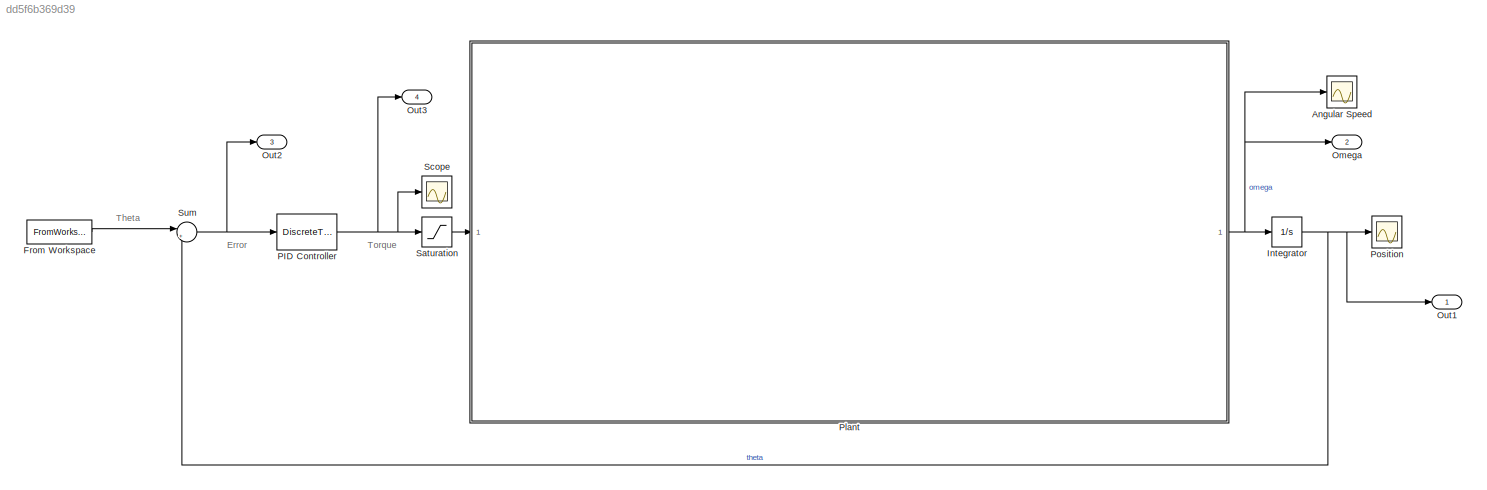
MODEL slx_dd5f6b369d39
KIND model
CONFIG AbsTol = auto
CONFIG EnableMultiTasking = off
CONFIG FixedStep = auto
CONFIG MaxStep = auto
CONFIG MinStep = auto
CONFIG RelTol = 1e-3
CONFIG SampleTimeConstraint = Unconstrained
CONFIG SolverName = VariableStepAuto
CONFIG StartTime = 0.0
CONFIG StopTime = 10
BLOCK [Scope] Angular Speed
  Floating = off
  NumInputPorts = 1
  Ports = [1]
  ScopeSpecificationString = Simulink.scopes.TimeScopeBlockCfg('CurrentConfiguration', extmgr.ConfigurationSet(extmgr.Configuration('Core','General UI',true),extmgr.Configuration('Core','Source UI',true),extmgr.Configuration('Sources','WiredSimulink',true,'DataLoggingVariableName','ScopeData1'),extmgr.Configuration('Visuals','Time Domain',true,'SerializedDisplays',{struct('MinYLimReal','-16.66629','MaxYLimReal','85.93646','YL...<+1449ch>
BLOCK [FromWorkspace] From Workspace
  VariableName = sim_source_off
BLOCK [Integrator] Integrator
  Ports = [1, 1]
BLOCK [Outport] Omega
  Port = 2
  SignalName = omega
BLOCK [Outport] Out1
  SignalName = theta
BLOCK [Outport] Out2
  Port = 3
  SignalName = error
BLOCK [Outport] Out3
  Port = 4
  SignalName = PID Torque
BLOCK [DiscreteTransferFcn] PID Controller
  Denominator = a_pid
  InputPortMap = u0
  Numerator = b_pid
  Ports = [1, 1]
  SampleTime = T
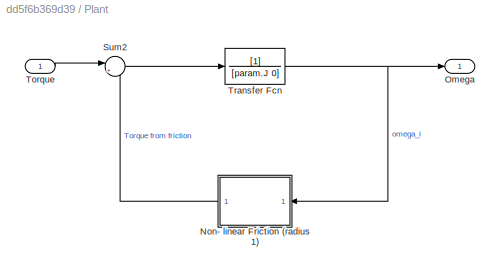
BLOCK [SubSystem] Plant
  Ports = [1, 1]
  RequestExecContextInheritance = off
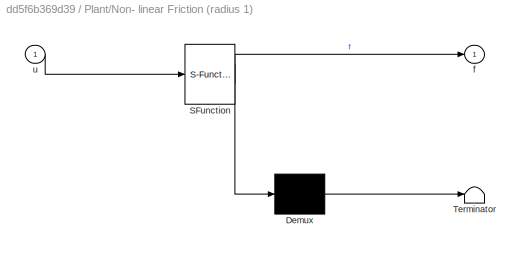
BLOCK [SubSystem] Plant/Non- linear Friction (radius 1)
  ErrorFcn = Stateflow.Translate.translate
  PermitHierarchicalResolution = ExplicitOnly
  Ports = [1, 1]
  RequestExecContextInheritance = off
  SFBlockType = MATLAB Function
  TreatAsAtomicUnit = on
BLOCK [Demux] Plant/Non- linear Friction (radius 1)/ Demux 
  Outputs = 1
  Ports = [1, 1]
BLOCK [S-Function] Plant/Non- linear Friction (radius 1)/ SFunction 
  EnableBusSupport = on
  FunctionName = sf_sfun
  Parameters = param
  PortCounts = [1 2]
  Ports = [1, 2]
  SFcnIsStateOwnerBlock = off
  SFunctionDeploymentMode = off
  Tag = Stateflow S-Function 2
BLOCK [Terminator] Plant/Non- linear Friction (radius 1)/ Terminator 
BLOCK [Outport] Plant/Non- linear Friction (radius 1)/f
BLOCK [Inport] Plant/Non- linear Friction (radius 1)/u
BLOCK [Outport] Plant/Omega
BLOCK [Sum] Plant/Sum2
  Inputs = |+-
  Ports = [2, 1]
BLOCK [Inport] Plant/Torque
BLOCK [TransferFcn] Plant/Transfer Fcn
  Denominator = [param.J 0]
BLOCK [Scope] Position
  Floating = off
  NumInputPorts = 1
  Ports = [1]
  ScopeSpecificationString = Simulink.scopes.TimeScopeBlockCfg('CurrentConfiguration', extmgr.ConfigurationSet(extmgr.Configuration('Core','General UI',true),extmgr.Configuration('Core','Source UI',true),extmgr.Configuration('Sources','WiredSimulink',true),extmgr.Configuration('Visuals','Time Domain',true,'SerializedDisplays',{struct('MinYLimReal','-0.04066','MaxYLimReal','0.36593','YLabelReal','','MinYLimMag','0.00000','MaxY...<+1454ch>
BLOCK [Saturate] Saturation
BLOCK [Scope] Scope
  Floating = off
  NumInputPorts = 1
  Ports = [1]
  ScopeSpecificationString = Simulink.scopes.TimeScopeBlockCfg('CurrentConfiguration', extmgr.ConfigurationSet(extmgr.Configuration('Core','General UI',true),extmgr.Configuration('Core','Source UI',true),extmgr.Configuration('Sources','WiredSimulink',true,'DataLoggingVariableName','ScopeData1'),extmgr.Configuration('Visuals','Time Domain',true,'SerializedDisplays',{struct('MinYLimReal','-2.72983','MaxYLimReal','12.35248','YLa...<+1377ch>
BLOCK [Sum] Sum
  Inputs = |+-
  Ports = [2, 1]
ANNOTATION (root): Error
ANNOTATION (root): Theta
ANNOTATION (root): Torque
LINE From Workspace:1 -> Sum:1
NET Integrator:1 -> Out1:1, Position:1, Sum:2
NET PID Controller:1 -> Out3:1, Saturation:1, Scope:1
LINE Plant/Non- linear Friction (radius 1):1 -> Plant/Sum2:2
LINE Plant/Sum2:1 -> Plant/Transfer Fcn:1
LINE Plant/Torque:1 -> Plant/Sum2:1
NET Plant/Transfer Fcn:1 -> Plant/Non- linear Friction (radius 1):1, Plant/Omega:1
NET Plant:1 -> Angular Speed:1, Integrator:1, Omega:1
LINE Saturation:1 -> Plant:1
NET Sum:1 -> Out2:1, PID Controller:1
note: NET lines group one-source signal fan-out (src -> all destinations, sorted); 1:1 wires keep LINE
CHART Plant/Non- linear Friction (radius 1) states=1 transitions=1
  STATE_LABEL 'eML_blk_kernel()'
  STATE_LABEL 'SCRIPT:\nfunction f = friction_m(u, param)\n\n%FRICTION_M Nonlinear friction model with Stribeck, Coulomb and viscous\n\n% dissipation effects.\n\n% Output equation.\n\nf = param.g1*(tanh(param.g2*u)-tanh(param.g3*u)) ... % Stribeck effect.\n+ param.g4*tanh(param.g5*u) ... % Coulomb effect.\n+ param.g6*u; % Viscous dissipation term.\n\nend\n'
CHART  states=0 transitions=0
